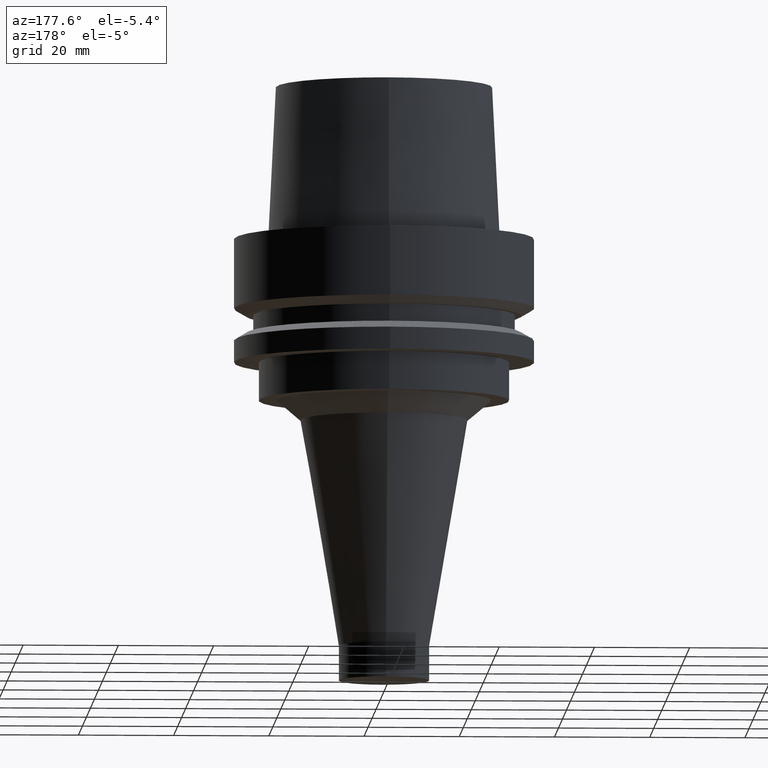
[diagram: clean part render]
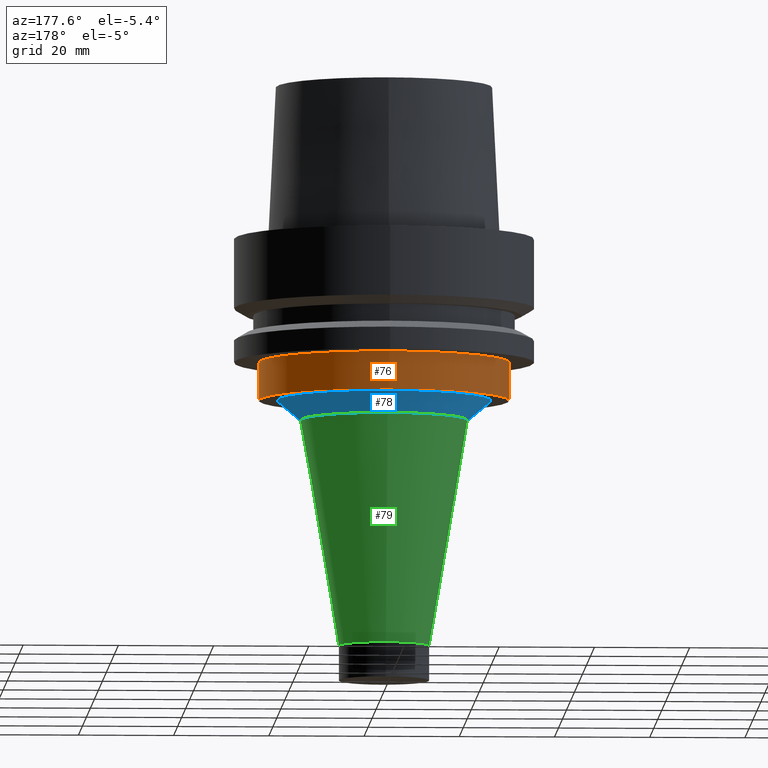
[diagram: same view with three faces highlighted in distinct colors, each labeled with its STEP entity id]
A machine part, auxiliary view with three faces highlighted in distinct colors.
Their STEP definitions:

[orange] entity #76 — the highlighted cylindrical surface (bore or boss wall) has radius 26.3 mm, axis along (-0, -0, 1).
#76=ADVANCED_FACE('',(#96,#97),#98,.T.);
#96=FACE_BOUND('',#145,.T.);
#97=FACE_BOUND('',#146,.T.);
#98=CYLINDRICAL_SURFACE('',#147,26.3);
#145=EDGE_LOOP('',(#196));
#146=EDGE_LOOP('',(#197));
#147=AXIS2_PLACEMENT_3D('',#198,#199,#200);
#196=ORIENTED_EDGE('',*,*,#276,.F.);
#197=ORIENTED_EDGE('',*,*,#274,.T.);
#198=CARTESIAN_POINT('',(1.83697019872103E-015,3.67394039744206E-015,-30.0));
#199=DIRECTION('',(-6.12323399573677E-017,-1.22464679914735E-016,1.0));
#200=DIRECTION('',(-1.23259516440783E-032,1.0,1.22464679914735E-016));
#274=EDGE_CURVE('',#290,#290,#291,.T.);
#276=EDGE_CURVE('',#294,#294,#295,.T.);
#290=VERTEX_POINT('',#322);
#291=CIRCLE('',#323,26.3);
#294=VERTEX_POINT('',#326);
#295=CIRCLE('',#327,26.3);
#322=CARTESIAN_POINT('',(1.59204083889156E-015,26.3,-26.0));
#323=AXIS2_PLACEMENT_3D('',#354,#355,#356);
#326=CARTESIAN_POINT('',(2.0818995585505E-015,26.3,-34.0));
#327=AXIS2_PLACEMENT_3D('',#360,#361,#362);
#354=CARTESIAN_POINT('',(1.59204083889156E-015,3.18408167778312E-015,-26.0));
#355=DIRECTION('',(6.12323399573677E-017,1.22464679914735E-016,-1.0));
#356=DIRECTION('',(-1.23259516440783E-032,1.0,1.22464679914735E-016));
#360=CARTESIAN_POINT('',(2.0818995585505E-015,4.163799117101E-015,-34.0));
#361=DIRECTION('',(6.12323399573677E-017,1.22464679914735E-016,-1.0));
#362=DIRECTION('',(-1.23259516440783E-032,1.0,1.22464679914735E-016));

[blue] entity #78 — the highlighted conical surface has half-angle 49.906 deg.
#78=ADVANCED_FACE('',(#102,#103),#104,.T.);
#102=FACE_BOUND('',#151,.T.);
#103=FACE_BOUND('',#152,.T.);
#104=CONICAL_SURFACE('',#153,20.03656257,0.871015968796423);
#151=EDGE_LOOP('',(#206));
#152=EDGE_LOOP('',(#207));
#153=AXIS2_PLACEMENT_3D('',#208,#209,#210);
#206=ORIENTED_EDGE('',*,*,#278,.F.);
#207=ORIENTED_EDGE('',*,*,#277,.T.);
#208=CARTESIAN_POINT('',(2.20889542886663E-015,4.41779085773325E-015,-36.073999955));
#209=DIRECTION('',(-6.12323399573677E-017,-1.22464679914735E-016,1.0));
#210=DIRECTION('',(-1.23259516440783E-032,1.0,1.22464679914735E-016));
#277=EDGE_CURVE('',#296,#296,#297,.T.);
#278=EDGE_CURVE('',#298,#298,#299,.T.);
#296=VERTEX_POINT('',#328);
#297=CIRCLE('',#329,22.5);
#298=VERTEX_POINT('',#330);
#299=CIRCLE('',#331,17.57312514);
#328=CARTESIAN_POINT('',(2.0818995585505E-015,22.5,-34.0));
#329=AXIS2_PLACEMENT_3D('',#363,#364,#365);
#330=CARTESIAN_POINT('',(2.33589129918275E-015,17.57312514,-38.14799991));
#331=AXIS2_PLACEMENT_3D('',#366,#367,#368);
#363=CARTESIAN_POINT('',(2.0818995585505E-015,4.163799117101E-015,-34.0));
#364=DIRECTION('',(6.12323399573677E-017,1.22464679914735E-016,-1.0));
#365=DIRECTION('',(-1.23259516440783E-032,1.0,1.22464679914735E-016));
#366=CARTESIAN_POINT('',(2.33589129918275E-015,4.6717825983655E-015,-38.14799991));
#367=DIRECTION('',(6.12323399573676E-017,1.22464679914735E-016,-1.0));
#368=DIRECTION('',(-1.23259516440783E-032,1.0,1.22464679914735E-016));

[green] entity #79 — the highlighted conical surface has half-angle 9.635 deg.
#79=ADVANCED_FACE('',(#105,#106),#107,.T.);
#105=FACE_BOUND('',#154,.T.);
#106=FACE_BOUND('',#155,.T.);
#107=CONICAL_SURFACE('',#156,13.53656257,0.168171148467613);
#154=EDGE_LOOP('',(#211));
#155=EDGE_LOOP('',(#212));
#156=AXIS2_PLACEMENT_3D('',#213,#214,#215);
#211=ORIENTED_EDGE('',*,*,#279,.F.);
#212=ORIENTED_EDGE('',*,*,#278,.T.);
#213=CARTESIAN_POINT('',(3.79175141676458E-015,7.58350283352916E-015,-61.923999955));
#214=DIRECTION('',(-6.12323399573677E-017,-1.22464679914735E-016,1.0));
#215=DIRECTION('',(-1.23259516440783E-032,1.0,1.22464679914735E-016));
#278=EDGE_CURVE('',#298,#298,#299,.T.);
#279=EDGE_CURVE('',#300,#300,#301,.T.);
#298=VERTEX_POINT('',#330);
#299=CIRCLE('',#331,17.57312514);
#300=VERTEX_POINT('',#332);
#301=CIRCLE('',#333,9.5);
#330=CARTESIAN_POINT('',(2.33589129918275E-015,17.57312514,-38.14799991));
#331=AXIS2_PLACEMENT_3D('',#366,#367,#368);
#332=CARTESIAN_POINT('',(5.24761153434641E-015,9.50000000000001,-85.7));
#333=AXIS2_PLACEMENT_3D('',#369,#370,#371);
#366=CARTESIAN_POINT('',(2.33589129918275E-015,4.6717825983655E-015,-38.14799991));
#367=DIRECTION('',(6.12323399573676E-017,1.22464679914735E-016,-1.0));
#368=DIRECTION('',(-1.23259516440783E-032,1.0,1.22464679914735E-016));
#369=CARTESIAN_POINT('',(5.24761153434641E-015,1.04952230686928E-014,-85.7));
#370=DIRECTION('',(6.12323399573677E-017,1.22464679914735E-016,-1.0));
#371=DIRECTION('',(-1.23259516440783E-032,1.0,1.22464679914735E-016));